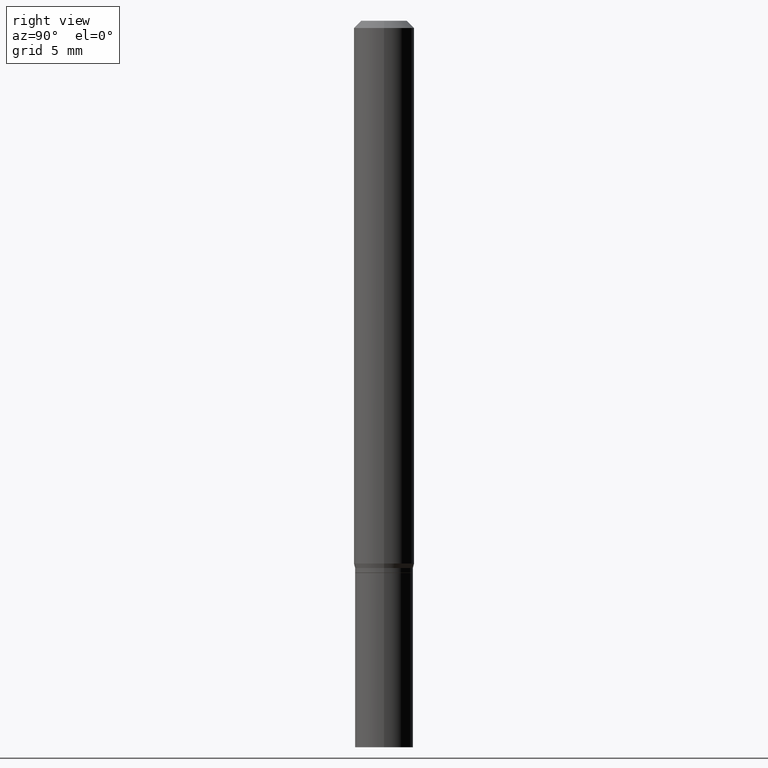
[diagram: clean part render]
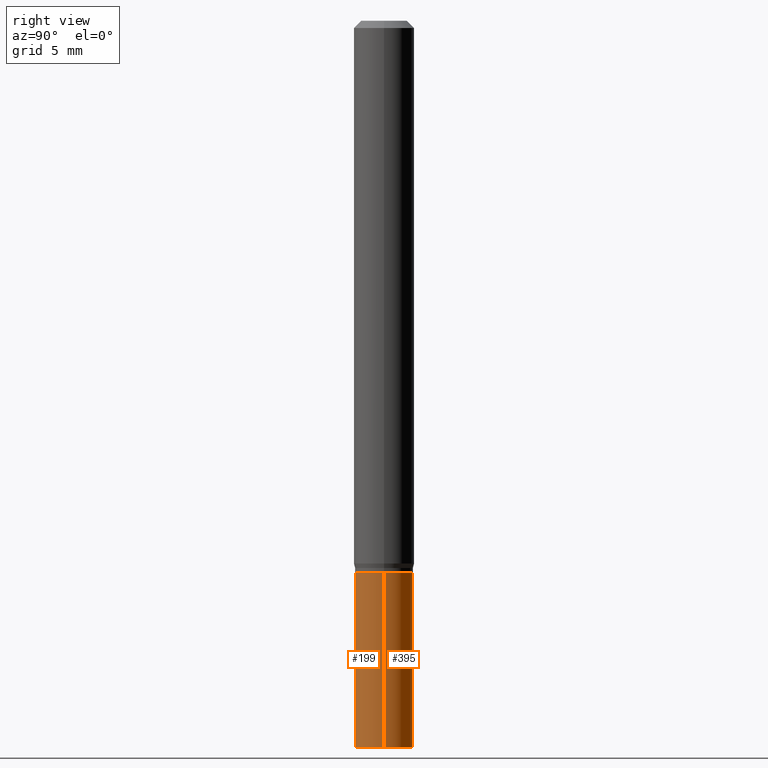
[diagram: same view with one multi-face feature highlighted, each face labeled with its STEP entity id]
A machine part, right view. The highlighted faces form ONE feature: a constant-radius fillet chain: 2 tangent blend faces with common blend radius 1.524 mm. The faces share edges in the B-rep.
Their STEP definitions:
[1] entity #199 (Cylinder):
#12 = CARTESIAN_POINT ( 'NONE',  ( -0.05999999999999999778, -4.182429725816891947E-15, -1.140000000000000124 ) ) ;
#26 = AXIS2_PLACEMENT_3D ( 'NONE', #64, #461, #404 ) ;
#27 = CARTESIAN_POINT ( 'NONE',  ( 0.05999999999999999778, -5.656199768925894810E-15, -1.500000000000000222 ) ) ;
#35 = CARTESIAN_POINT ( 'NONE',  ( -0.05999999999999999778, -4.182429725816891947E-15, -1.500000000000000222 ) ) ;
#41 = VECTOR ( 'NONE', #72, 39.37007874015748143 ) ;
#43 = CARTESIAN_POINT ( 'NONE',  ( 0.05999999999999999778, -4.189777606611760421E-16, 2.925706065477561756E-30 ) ) ;
#50 = VERTEX_POINT ( 'NONE', #27 ) ;
#64 = CARTESIAN_POINT ( 'NONE',  ( 3.668203209277704895E-29, -5.237222008264718177E-15, -1.500000000000000222 ) ) ;
#72 = DIRECTION ( 'NONE',  ( -2.445468806185136877E-29, 3.491481338843145188E-15, 1.000000000000000000 ) ) ;
#80 = CARTESIAN_POINT ( 'NONE',  ( 0.000000000000000000, 0.000000000000000000, 0.000000000000000000 ) ) ;
#82 = ORIENTED_EDGE ( 'NONE', *, *, #154, .T. ) ;
#84 = VERTEX_POINT ( 'NONE', #35 ) ;
#99 = VECTOR ( 'NONE', #396, 39.37007874015748143 ) ;
#105 = LINE ( 'NONE', #43, #41 ) ;
#122 = EDGE_LOOP ( 'NONE', ( #228, #371, #82, #302 ) ) ;
#134 = CIRCLE ( 'NONE', #26, 0.05999999999999999778 ) ;
#150 = LINE ( 'NONE', #327, #99 ) ;
#154 = EDGE_CURVE ( 'NONE', #50, #449, #105, .T. ) ;
#160 = EDGE_CURVE ( 'NONE', #231, #449, #299, .T. ) ;
#199 = ADVANCED_FACE ( 'NONE', ( #364 ), #397, .T. ) ;
#219 = DIRECTION ( 'NONE',  ( 1.000000000000000000, -6.982962677686268288E-15, 0.000000000000000000 ) ) ;
#228 = ORIENTED_EDGE ( 'NONE', *, *, #325, .F. ) ;
#230 = DIRECTION ( 'NONE',  ( 1.000000000000000000, -6.982962677686267499E-15, 4.876176775795936353E-29 ) ) ;
#231 = VERTEX_POINT ( 'NONE', #12 ) ;
#277 = EDGE_CURVE ( 'NONE', #84, #50, #134, .T. ) ;
#299 = CIRCLE ( 'NONE', #382, 0.05999999999999999778 ) ;
#302 = ORIENTED_EDGE ( 'NONE', *, *, #160, .F. ) ;
#325 = EDGE_CURVE ( 'NONE', #84, #231, #150, .T. ) ;
#327 = CARTESIAN_POINT ( 'NONE',  ( -0.05999999999999999778, 4.263256414560600957E-16, -2.951361054152943413E-30 ) ) ;
#328 = DIRECTION ( 'NONE',  ( -2.445468806185136597E-29, 3.491481338843145583E-15, 1.000000000000000000 ) ) ;
#332 = DIRECTION ( 'NONE',  ( -2.445468806185136597E-29, 3.491481338843145583E-15, 1.000000000000000000 ) ) ;
#364 = FACE_OUTER_BOUND ( 'NONE', #122, .T. ) ;
#371 = ORIENTED_EDGE ( 'NONE', *, *, #277, .T. ) ;
#382 = AXIS2_PLACEMENT_3D ( 'NONE', #428, #328, #219 ) ;
#396 = DIRECTION ( 'NONE',  ( -2.445468806185136877E-29, 3.491481338843145188E-15, 1.000000000000000000 ) ) ;
#397 = CYLINDRICAL_SURFACE ( 'NONE', #454, 0.05999999999999999778 ) ;
#404 = DIRECTION ( 'NONE',  ( 1.000000000000000000, -6.982962677686268288E-15, 0.000000000000000000 ) ) ;
#428 = CARTESIAN_POINT ( 'NONE',  ( 2.787834439051055989E-29, -3.980288726281186698E-15, -1.140000000000000124 ) ) ;
#449 = VERTEX_POINT ( 'NONE', #450 ) ;
#450 = CARTESIAN_POINT ( 'NONE',  ( 0.05999999999999999778, -4.399266486942362543E-15, -1.140000000000000124 ) ) ;
#454 = AXIS2_PLACEMENT_3D ( 'NONE', #80, #332, #230 ) ;
#461 = DIRECTION ( 'NONE',  ( -2.445468806185136597E-29, 3.491481338843145583E-15, 1.000000000000000000 ) ) ;
[2] entity #395 (Cylinder):
#5 = FACE_OUTER_BOUND ( 'NONE', #402, .T. ) ;
#11 = CARTESIAN_POINT ( 'NONE',  ( 2.787834439051055989E-29, -3.980288726281186698E-15, -1.140000000000000124 ) ) ;
#12 = CARTESIAN_POINT ( 'NONE',  ( -0.05999999999999999778, -4.182429725816891947E-15, -1.140000000000000124 ) ) ;
#19 = ORIENTED_EDGE ( 'NONE', *, *, #390, .F. ) ;
#27 = CARTESIAN_POINT ( 'NONE',  ( 0.05999999999999999778, -5.656199768925894810E-15, -1.500000000000000222 ) ) ;
#35 = CARTESIAN_POINT ( 'NONE',  ( -0.05999999999999999778, -4.182429725816891947E-15, -1.500000000000000222 ) ) ;
#41 = VECTOR ( 'NONE', #72, 39.37007874015748143 ) ;
#43 = CARTESIAN_POINT ( 'NONE',  ( 0.05999999999999999778, -4.189777606611760421E-16, 2.925706065477561756E-30 ) ) ;
#44 = DIRECTION ( 'NONE',  ( -2.445468806185136597E-29, 3.491481338843145583E-15, 1.000000000000000000 ) ) ;
#50 = VERTEX_POINT ( 'NONE', #27 ) ;
#63 = CIRCLE ( 'NONE', #275, 0.05999999999999999778 ) ;
#72 = DIRECTION ( 'NONE',  ( -2.445468806185136877E-29, 3.491481338843145188E-15, 1.000000000000000000 ) ) ;
#73 = ORIENTED_EDGE ( 'NONE', *, *, #154, .F. ) ;
#84 = VERTEX_POINT ( 'NONE', #35 ) ;
#99 = VECTOR ( 'NONE', #396, 39.37007874015748143 ) ;
#105 = LINE ( 'NONE', #43, #41 ) ;
#118 = AXIS2_PLACEMENT_3D ( 'NONE', #331, #44, #291 ) ;
#140 = EDGE_CURVE ( 'NONE', #50, #84, #346, .T. ) ;
#145 = DIRECTION ( 'NONE',  ( -2.445468806185136597E-29, 3.491481338843145583E-15, 1.000000000000000000 ) ) ;
#150 = LINE ( 'NONE', #327, #99 ) ;
#154 = EDGE_CURVE ( 'NONE', #50, #449, #105, .T. ) ;
#188 = DIRECTION ( 'NONE',  ( -2.445468806185136597E-29, 3.491481338843145583E-15, 1.000000000000000000 ) ) ;
#190 = ORIENTED_EDGE ( 'NONE', *, *, #325, .T. ) ;
#231 = VERTEX_POINT ( 'NONE', #12 ) ;
#275 = AXIS2_PLACEMENT_3D ( 'NONE', #11, #188, #326 ) ;
#291 = DIRECTION ( 'NONE',  ( 1.000000000000000000, -6.982962677686267499E-15, 4.876176775795936353E-29 ) ) ;
#318 = CARTESIAN_POINT ( 'NONE',  ( 3.668203209277704895E-29, -5.237222008264718177E-15, -1.500000000000000222 ) ) ;
#325 = EDGE_CURVE ( 'NONE', #84, #231, #150, .T. ) ;
#326 = DIRECTION ( 'NONE',  ( 1.000000000000000000, -6.982962677686268288E-15, 0.000000000000000000 ) ) ;
#327 = CARTESIAN_POINT ( 'NONE',  ( -0.05999999999999999778, 4.263256414560600957E-16, -2.951361054152943413E-30 ) ) ;
#331 = CARTESIAN_POINT ( 'NONE',  ( 0.000000000000000000, 0.000000000000000000, 0.000000000000000000 ) ) ;
#335 = ORIENTED_EDGE ( 'NONE', *, *, #140, .T. ) ;
#346 = CIRCLE ( 'NONE', #387, 0.05999999999999999778 ) ;
#367 = CYLINDRICAL_SURFACE ( 'NONE', #118, 0.05999999999999999778 ) ;
#387 = AXIS2_PLACEMENT_3D ( 'NONE', #318, #145, #400 ) ;
#390 = EDGE_CURVE ( 'NONE', #449, #231, #63, .T. ) ;
#395 = ADVANCED_FACE ( 'NONE', ( #5 ), #367, .T. ) ;
#396 = DIRECTION ( 'NONE',  ( -2.445468806185136877E-29, 3.491481338843145188E-15, 1.000000000000000000 ) ) ;
#400 = DIRECTION ( 'NONE',  ( 1.000000000000000000, -6.982962677686268288E-15, 0.000000000000000000 ) ) ;
#402 = EDGE_LOOP ( 'NONE', ( #335, #190, #19, #73 ) ) ;
#449 = VERTEX_POINT ( 'NONE', #450 ) ;
#450 = CARTESIAN_POINT ( 'NONE',  ( 0.05999999999999999778, -4.399266486942362543E-15, -1.140000000000000124 ) ) ;